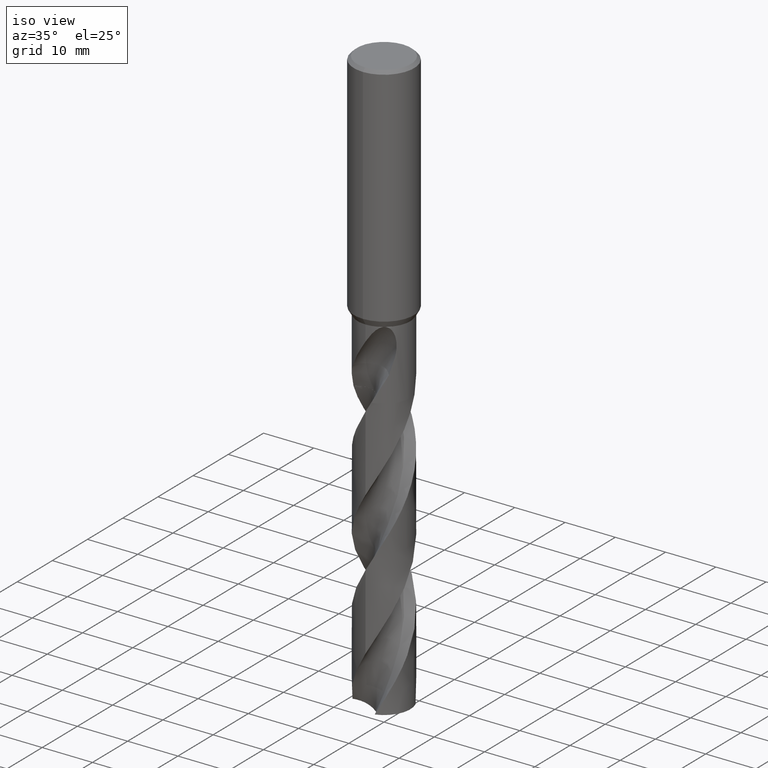
[diagram: clean part render]
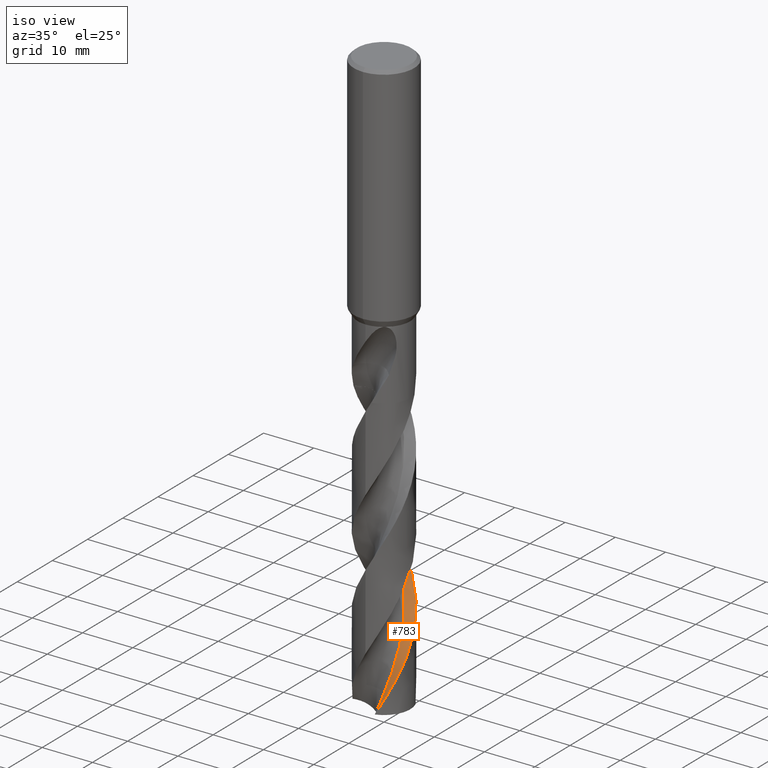
[diagram: same view with one face highlighted and labeled with its STEP entity id]
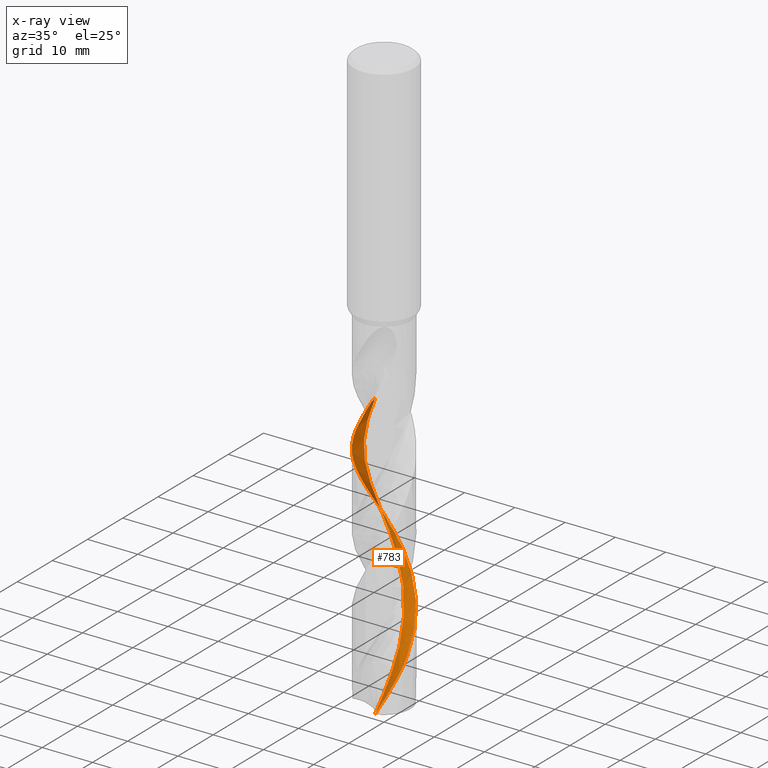
[diagram: x-ray of the same camera — body ghosted, the highlighted face saturated]
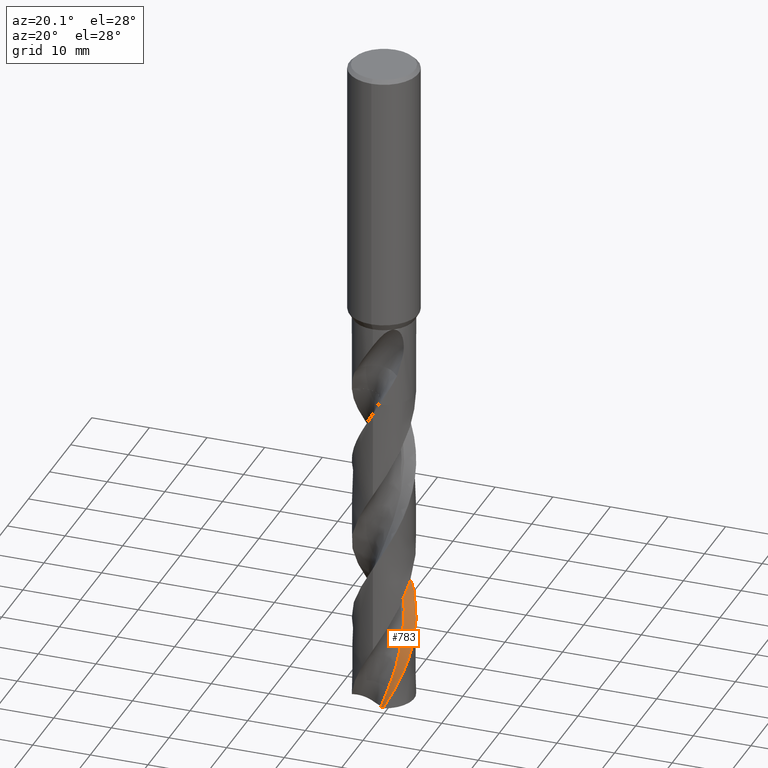
[diagram: same view with one face highlighted and labeled with its STEP entity id]
A machine part, iso view. The second image highlights one B-rep face of the part: STEP entity #783.
The next image is the same camera in x-ray: the body ghosted, the highlighted face saturated — about 0% of this face is hidden behind the body in this view.
A second angle (auxiliary view) of the same face is appended — the face is thin or edge-on in the first view.
In plain terms, the highlighted face is a freeform B-spline surface patch.
Its self-contained STEP definition (entity closure, byte-faithful):
#425=VERTEX_POINT('',#994);
#441=VERTEX_POINT('',#1011);
#463=EDGE_CURVE('',#701,#425,#1036,.T.);
#507=EDGE_CURVE('',#731,#527,#1081,.T.);
#527=VERTEX_POINT('',#1105);
#571=VERTEX_POINT('',#1153);
#581=EDGE_CURVE('',#527,#425,#1163,.T.);
#655=EDGE_CURVE('',#571,#441,#1243,.T.);
#701=VERTEX_POINT('',#1293);
#731=VERTEX_POINT('',#1326);
#739=EDGE_CURVE('',#701,#571,#1335,.T.);
#781=EDGE_CURVE('',#441,#731,#1380,.T.);
#783=ADVANCED_FACE('',(#1382),#1383,.F.);
#994=CARTESIAN_POINT('',(0.65949167651613,-3.24349319442052,-116.79530925201));
#1011=CARTESIAN_POINT('',(1.09795884444459E-014,-5.24990328403479,-61.9387033770496));
#1036=B_SPLINE_CURVE_WITH_KNOTS('',3,(#4142,#4143,#4144,#4145,#4146,#4147,#4148,#4149,#4150,#4151,#4152,#4153,#4154,#4155,#4156,#4157,#4158,#4159,#4160,#4161,#4162,#4163,#4164,#4165,#4166,#4167,#4168,#4169,#4170,#4171,#4172,#4173,#4174,#4175,#4176,#4177,#4178,#4179,#4180,#4181,#4182,#4183,#4184,#4185,#4186,#4187,#4188,#4189,#4190,#4191,#4192,#4193,#4194,#4195,#4196,#4197,#4198,#4199),.UNSPECIFIED.,.F.,.F.,(4,1,2,2,2,2,2,2,2,1,2,1,2,1,2,1,2,1,2,1,2,1,2,1,2,1,2,1,2,1,2,2,2,2,4),(0.0,1.26689958449814,2.53379916899629,3.80069875349443,5.06759833799258,7.60139750698886,10.1351966759852,12.6689958449814,15.2027950139777,17.736594182974,20.2703933519703,22.8041925209666,25.3379916899629,27.8717908589592,30.4055900279555,32.9393891969517,35.473188365948,38.0069875349443,40.5407867039406,43.0745858729369,45.6083850419332,48.1421842109295,50.6759833799258,53.2097825489221,55.7435817179183,58.2773808869146,60.8111800559109,63.3449792249072,65.8787783939035,68.4125775628998,70.9463767318961,73.4801759008924,76.0139750698886,78.5477742388849,81.0815734078812),.UNSPECIFIED.);
#1081=B_SPLINE_CURVE_WITH_KNOTS('',3,(#4464,#4465,#4466,#4467,#4468,#4469,#4470,#4471,#4472,#4473,#4474,#4475,#4476,#4477,#4478,#4479,#4480,#4481,#4482,#4483,#4484,#4485,#4486,#4487,#4488,#4489,#4490,#4491,#4492,#4493,#4494,#4495,#4496,#4497,#4498,#4499,#4500,#4501,#4502,#4503,#4504,#4505,#4506,#4507,#4508,#4509,#4510,#4511,#4512,#4513,#4514,#4515,#4516,#4517,#4518,#4519,#4520,#4521,#4522,#4523,#4524,#4525,#4526,#4527,#4528,#4529,#4530,#4531,#4532,#4533,#4534,#4535,#4536,#4537,#4538,#4539,#4540,#4541,#4542,#4543,#4544,#4545,#4546,#4547),.UNSPECIFIED.,.F.,.F.,(4,2,2,2,2,2,2,2,2,2,2,2,2,2,2,2,2,2,2,2,2,2,2,2,2,2,2,2,2,2,2,2,2,2,2,2,2,2,2,2,2,4),(0.0,2.5404713145012,3.55871574338767,4.5763901968632,5.40570294809297,5.45621928092477,7.21446169220443,8.21448072127659,10.8941822900106,12.8723965211782,14.9951312022285,16.014319590128,17.377558899427,19.4997161506208,20.5188162936082,21.8510305402058,24.2181561568956,25.2354057949074,26.5877605052576,29.2304982618999,32.1096378064326,34.8212527779403,35.3905132745208,37.6127941825613,38.6318067214652,40.7508494004822,42.8725406607112,44.8749150759133,47.6522717924791,50.4492264489168,52.9004535897138,53.485826585799,57.4876836077463,58.3738790975901,59.9428269195086,60.2373170569483,61.3421133710467,63.0011243286278,63.8301677032501,64.2445462835243,64.4516004469955,64.6585280843225),.UNSPECIFIED.);
#1105=CARTESIAN_POINT('',(1.65020867735761,-4.98390522794863,-116.089156270102));
#1153=CARTESIAN_POINT('',(1.05248799813792,-5.14331790943763,-60.1050000000001));
#1163=B_SPLINE_CURVE_WITH_KNOTS('',3,(#6216,#6217,#6218,#6219,#6220,#6221,#6222,#6223),.UNSPECIFIED.,.F.,.F.,(4,2,2,4),(0.0,1.14800098992405,2.84760359129401,4.5296465812908),.UNSPECIFIED.);
#1243=B_SPLINE_CURVE_WITH_KNOTS('',3,(#6492,#6493,#6494,#6495,#6496,#6497,#6498,#6499,#6500,#6501,#6502,#6503,#6504,#6505,#6506,#6507,#6508,#6509,#6510,#6511,#6512,#6513,#6514,#6515,#6516,#6517,#6518,#6519,#6520,#6521,#6522,#6523,#6524,#6525,#6526,#6527,#6528,#6529,#6530,#6531,#6532,#6533,#6534,#6535,#6536,#6537,#6538,#6539,#6540,#6541,#6542,#6543,#6544,#6545,#6546,#6547,#6548,#6549,#6550,#6551,#6552,#6553,#6554,#6555,#6556,#6557,#6558,#6559,#6560,#6561,#6562,#6563,#6564,#6565,#6566,#6567,#6568,#6569,#6570,#6571,#6572,#6573,#6574,#6575),.UNSPECIFIED.,.F.,.F.,(4,2,2,2,2,2,2,2,2,2,2,2,2,2,2,2,2,2,2,2,2,2,2,2,2,2,2,2,2,2,2,2,2,2,2,2,2,2,2,2,2,4),(0.0,2.5404713145012,3.55871574338767,4.5763901968632,5.40570294809297,5.45621928092477,7.21446169220443,8.21448072127659,10.8941822900106,12.8723965211782,14.9951312022285,16.014319590128,17.377558899427,19.4997161506208,20.5188162936082,21.8510305402058,24.2181561568956,25.2354057949074,26.5877605052576,29.2304982618999,32.1096378064326,34.8212527779403,35.3905132745208,37.6127941825613,38.6318067214652,40.7508494004822,42.8725406607112,44.8749150759133,47.6522717924791,50.4492264489168,52.9004535897138,53.485826585799,57.4876836077463,58.3738790975901,59.9428269195086,60.2373170569483,61.3421133710467,63.0011243286278,63.8301677032501,64.2445462835243,64.4516004469955,64.6585280843225),.UNSPECIFIED.);
#1293=CARTESIAN_POINT('',(0.521625326031044,-3.25719927706871,-60.1050000000003));
#1326=CARTESIAN_POINT('',(-5.4056256595375E-014,5.24995423434483,-90.4653520764811));
#1335=B_SPLINE_CURVE_WITH_KNOTS('',3,(#7698,#7699,#7700,#7701,#7702,#7703),.UNSPECIFIED.,.F.,.F.,(4,2,4),(-6.99972136357214,-3.49986107695856,-0.0),.UNSPECIFIED.);
#1380=B_SPLINE_CURVE_WITH_KNOTS('',3,(#8057,#8058,#8059,#8060,#8061,#8062,#8063,#8064,#8065,#8066,#8067,#8068,#8069,#8070,#8071,#8072,#8073,#8074,#8075,#8076,#8077,#8078,#8079,#8080,#8081,#8082,#8083,#8084,#8085,#8086,#8087,#8088,#8089,#8090,#8091,#8092,#8093,#8094,#8095,#8096,#8097,#8098,#8099,#8100,#8101,#8102,#8103,#8104,#8105,#8106,#8107,#8108,#8109,#8110,#8111,#8112,#8113,#8114,#8115,#8116,#8117,#8118,#8119,#8120,#8121,#8122,#8123,#8124,#8125,#8126,#8127,#8128,#8129,#8130,#8131,#8132,#8133,#8134,#8135,#8136,#8137,#8138,#8139,#8140),.UNSPECIFIED.,.F.,.F.,(4,2,2,2,2,2,2,2,2,2,2,2,2,2,2,2,2,2,2,2,2,2,2,2,2,2,2,2,2,2,2,2,2,2,2,2,2,2,2,2,2,4),(0.0,2.5404713145012,3.55871574338767,4.5763901968632,5.40570294809297,5.45621928092477,7.21446169220443,8.21448072127659,10.8941822900106,12.8723965211782,14.9951312022285,16.014319590128,17.377558899427,19.4997161506208,20.5188162936082,21.8510305402058,24.2181561568956,25.2354057949074,26.5877605052576,29.2304982618999,32.1096378064326,34.8212527779403,35.3905132745208,37.6127941825613,38.6318067214652,40.7508494004822,42.8725406607112,44.8749150759133,47.6522717924791,50.4492264489168,52.9004535897138,53.485826585799,57.4876836077463,58.3738790975901,59.9428269195086,60.2373170569483,61.3421133710467,63.0011243286278,63.8301677032501,64.2445462835243,64.4516004469955,64.6585280843225),.UNSPECIFIED.);
#1382=FACE_OUTER_BOUND('',#8142,.T.);
#1383=B_SPLINE_SURFACE_WITH_KNOTS('',3,3,((#8143,#8144,#8145,#8146,#8147,#8148,#8149,#8150,#8151,#8152,#8153,#8154,#8155,#8156,#8157,#8158,#8159,#8160,#8161,#8162,#8163,#8164,#8165,#8166,#8167,#8168,#8169,#8170,#8171,#8172,#8173,#8174,#8175,#8176,#8177,#8178,#8179,#8180,#8181,#8182,#8183,#8184,#8185,#8186,#8187,#8188,#8189,#8190,#8191,#8192,#8193,#8194,#8195,#8196,#8197,#8198,#8199,#8200,#8201),(#8202,#8203,#8204,#8205,#8206,#8207,#8208,#8209,#8210,#8211,#8212,#8213,#8214,#8215,#8216,#8217,#8218,#8219,#8220,#8221,#8222,#8223,#8224,#8225,#8226,#8227,#8228,#8229,#8230,#8231,#8232,#8233,#8234,#8235,#8236,#8237,#8238,#8239,#8240,#8241,#8242,#8243,#8244,#8245,#8246,#8247,#8248,#8249,#8250,#8251,#8252,#8253,#8254,#8255,#8256,#8257,#8258,#8259,#8260),(#8261,#8262,#8263,#8264,#8265,#8266,#8267,#8268,#8269,#8270,#8271,#8272,#8273,#8274,#8275,#8276,#8277,#8278,#8279,#8280,#8281,#8282,#8283,#8284,#8285,#8286,#8287,#8288,#8289,#8290,#8291,#8292,#8293,#8294,#8295,#8296,#8297,#8298,#8299,#8300,#8301,#8302,#8303,#8304,#8305,#8306,#8307,#8308,#8309,#8310,#8311,#8312,#8313,#8314,#8315,#8316,#8317,#8318,#8319),(#8320,#8321,#8322,#8323,#8324,#8325,#8326,#8327,#8328,#8329,#8330,#8331,#8332,#8333,#8334,#8335,#8336,#8337,#8338,#8339,#8340,#8341,#8342,#8343,#8344,#8345,#8346,#8347,#8348,#8349,#8350,#8351,#8352,#8353,#8354,#8355,#8356,#8357,#8358,#8359,#8360,#8361,#8362,#8363,#8364,#8365,#8366,#8367,#8368,#8369,#8370,#8371,#8372,#8373,#8374,#8375,#8376,#8377,#8378)),.UNSPECIFIED.,.F.,.F.,.F.,(4,4),(4,1,1,2,2,2,2,2,2,2,1,2,1,2,1,2,1,2,1,2,1,2,1,2,1,2,1,2,1,2,1,2,2,2,2,4),(-5.3145557616166E-016,7.0),(0.0,1.26689958449814,1.90034937674722,2.53379916899629,3.80069875349443,5.06759833799258,7.60139750698886,10.1351966759852,12.6689958449814,15.2027950139777,17.736594182974,20.2703933519703,22.8041925209666,25.3379916899629,27.8717908589592,30.4055900279555,32.9393891969517,35.473188365948,38.0069875349443,40.5407867039406,43.0745858729369,45.6083850419332,48.1421842109295,50.6759833799258,53.2097825489221,55.7435817179183,58.2773808869146,60.8111800559109,63.3449792249072,65.8787783939035,68.4125775628998,70.9463767318961,73.4801759008924,76.0139750698886,78.5477742388849,81.0815734078812),.UNSPECIFIED.);
#4142=CARTESIAN_POINT('',(2.47487373408221,-2.6001262659178,-54.943));
#4143=CARTESIAN_POINT('',(2.21609118137341,-2.5885373412518,-55.2711168185143));
#4144=CARTESIAN_POINT('',(1.8077265724247,-2.61894271474595,-55.9248935581223));
#4145=CARTESIAN_POINT('',(1.61667955760573,-2.74889054040622,-56.5785252572586));
#4146=CARTESIAN_POINT('',(1.51288071457274,-2.94292839866717,-57.2397841637271));
#4147=CARTESIAN_POINT('',(1.42637709217965,-3.01595717879246,-57.5705174015352));
#4148=CARTESIAN_POINT('',(1.20485610615679,-3.10819357880055,-58.2278052007368));
#4149=CARTESIAN_POINT('',(1.08767018768322,-3.14459263799841,-58.5561263466795));
#4150=CARTESIAN_POINT('',(0.726096613584896,-3.22757946382415,-59.5391552508789));
#4151=CARTESIAN_POINT('',(0.487676111350005,-3.26658651991545,-60.1949214350522));
#4152=CARTESIAN_POINT('',(0.0192736734021608,-3.31910220782575,-61.5106400442403));
#4153=CARTESIAN_POINT('',(-0.222689089582094,-3.30961265026839,-62.1680732112233));
#4154=CARTESIAN_POINT('',(-0.69681069398644,-3.24193671726234,-63.4809682137961));
#4155=CARTESIAN_POINT('',(-0.93045325286535,-3.17952164115793,-64.1377074135467));
#4156=CARTESIAN_POINT('',(-1.37856847946385,-3.01515676970789,-65.4519660197921));
#4157=CARTESIAN_POINT('',(-1.59341962327973,-2.90525145787917,-66.1088381727292));
#4158=CARTESIAN_POINT('',(-1.99649257382166,-2.65436628909348,-67.4225052597777));
#4159=CARTESIAN_POINT('',(-2.36821727862019,-2.34210866849688,-68.7367112640362));
#4160=CARTESIAN_POINT('',(-2.66437300964328,-1.96105025438604,-70.0498568032768));
#4161=CARTESIAN_POINT('',(-2.92711228920116,-1.5677671658453,-71.3637960560408));
#4162=CARTESIAN_POINT('',(-3.13484440359662,-1.1300036544184,-72.6783288730644));
#4163=CARTESIAN_POINT('',(-3.24301594284219,-0.659310784091004,-73.9915617283591));
#4164=CARTESIAN_POINT('',(-3.31515272133831,-0.191441344874111,-75.3053412129986));
#4165=CARTESIAN_POINT('',(-3.3191003764992,0.29324235264817,-76.6197385547745));
#4166=CARTESIAN_POINT('',(-3.21943830396484,0.76569565402472,-77.9329533058182));
#4167=CARTESIAN_POINT('',(-3.08825743462511,1.22048088202834,-79.2467893450219));
#4168=CARTESIAN_POINT('',(-2.88801807666798,1.66188379635314,-80.5612279809592));
#4169=CARTESIAN_POINT('',(-2.59884611344572,2.04861021097294,-81.8744454355509));
#4170=CARTESIAN_POINT('',(-2.28855645639341,2.40605657448809,-83.1882660226367));
#4171=CARTESIAN_POINT('',(-1.92126643696668,2.72232297378483,-84.5026944434799));
#4172=CARTESIAN_POINT('',(-1.49628602930746,2.95158565501003,-85.8159126229762));
#4173=CARTESIAN_POINT('',(-1.06444370034704,3.14539053970128,-87.1297382632877));
#4174=CARTESIAN_POINT('',(-0.598202864936493,3.27786171275759,-88.4441691399747));
#4175=CARTESIAN_POINT('',(-0.116219163739127,3.30714733029503,-89.7573861490789));
#4176=CARTESIAN_POINT('',(0.357074586707948,3.30138941642961,-91.0712101331077));
#4177=CARTESIAN_POINT('',(0.83578537725144,3.22551733806394,-92.385640942301));
#4178=CARTESIAN_POINT('',(1.28538924189434,3.04939555483003,-93.6988599785199));
#4179=CARTESIAN_POINT('',(1.71237172093181,2.84512597164282,-95.0126864105753));
#4180=CARTESIAN_POINT('',(2.11478053102904,2.5749443905048,-96.3271163876554));
#4181=CARTESIAN_POINT('',(2.44861110146712,2.22604903775447,-97.6403248172752));
#4182=CARTESIAN_POINT('',(2.75008494486346,1.86115149293628,-98.9541352700636));
#4183=CARTESIAN_POINT('',(3.00156384614802,1.44682623581843,-100.268568585669));
#4184=CARTESIAN_POINT('',(3.15767793150281,0.989844889309732,-101.581817737136));
#4185=CARTESIAN_POINT('',(3.27761180465734,0.531875094028778,-102.895681512399));
#4186=CARTESIAN_POINT('',(3.33142776473763,0.050125142603608,-104.210093389418));
#4187=CARTESIAN_POINT('',(3.281329100911,-0.429923948086889,-105.523220024734));
#4188=CARTESIAN_POINT('',(3.19845406075407,-0.895585288785068,-106.836951520262));
#4189=CARTESIAN_POINT('',(3.04485044253037,-1.35525746856426,-108.151460766177));
#4190=CARTESIAN_POINT('',(2.7949541062339,-1.76965179472583,-109.464856405099));
#4191=CARTESIAN_POINT('',(2.52003884142829,-2.15663536746975,-110.778760673143));
#4192=CARTESIAN_POINT('',(2.35507582398243,-2.33313999512921,-111.435759263981));
#4193=CARTESIAN_POINT('',(1.99649897929275,-2.64861064904945,-112.749458649624));
#4194=CARTESIAN_POINT('',(1.79610182668359,-2.78446182334504,-113.406438044121));
#4195=CARTESIAN_POINT('',(1.37762045253076,-3.01511434039018,-114.720455052577));
#4196=CARTESIAN_POINT('',(1.15405715005655,-3.10565760387043,-115.377149044304));
#4197=CARTESIAN_POINT('',(0.702155077882112,-3.24773595570479,-116.690102097491));
#4198=CARTESIAN_POINT('',(0.460035334720009,-3.28311573594366,-117.346947791735));
#4199=CARTESIAN_POINT('',(0.215142924511666,-3.28759947796476,-118.003274240349));
#4464=CARTESIAN_POINT('',(1.05350008433381,-5.14311069709876,-60.1032156011559));
#4465=CARTESIAN_POINT('',(0.637838844983037,-5.22825489256364,-60.8360775936607));
#4466=CARTESIAN_POINT('',(0.213648793816245,-5.26264511737393,-61.568791009174));
#4467=CARTESIAN_POINT('',(-0.379532454186468,-5.23892208596196,-62.5956565337003));
#4468=CARTESIAN_POINT('',(-0.548839385754581,-5.22390187443065,-62.8888951954744));
#4469=CARTESIAN_POINT('',(-0.885401495634429,-5.17749151191175,-63.4762344443459));
#4470=CARTESIAN_POINT('',(-1.0523786707832,-5.14614775987483,-63.7697269865514));
#4471=CARTESIAN_POINT('',(-1.35208004738542,-5.07469667030483,-64.3026340726727));
#4472=CARTESIAN_POINT('',(-1.4853160940267,-5.03731084717981,-64.5418165195485));
#4473=CARTESIAN_POINT('',(-1.62492392667458,-4.99211691443267,-64.7956864830385));
#4474=CARTESIAN_POINT('',(-1.63293336333063,-4.98950277658286,-64.8102627723651));
#4475=CARTESIAN_POINT('',(-1.91948626315465,-4.8952131211191,-65.3321719581629));
#4476=CARTESIAN_POINT('',(-2.18994221275291,-4.78035481800265,-65.8386543890977));
#4477=CARTESIAN_POINT('',(-2.59704350509078,-4.56560882639909,-66.6344036715076));
#4478=CARTESIAN_POINT('',(-2.7407668727414,-4.48080082331919,-66.9225534163568));
#4479=CARTESIAN_POINT('',(-3.25372798536193,-4.14421026522872,-67.9845964534962));
#4480=CARTESIAN_POINT('',(-3.5947587996049,-3.85220789207367,-68.7559788984247));
#4481=CARTESIAN_POINT('',(-4.11624922497069,-3.27524419007976,-70.0999219477025));
#4482=CARTESIAN_POINT('',(-4.31394514757095,-3.0100425256881,-70.6683291762208));
#4483=CARTESIAN_POINT('',(-4.66933960896619,-2.42574748510911,-71.8522685967017));
#4484=CARTESIAN_POINT('',(-4.82233088726984,-2.10531412508917,-72.464450298661));
#4485=CARTESIAN_POINT('',(-4.99932310630663,-1.61164749374562,-73.3713701857561));
#4486=CARTESIAN_POINT('',(-5.04893946309441,-1.44875712620105,-73.6652743763804));
#4487=CARTESIAN_POINT('',(-5.14624623400889,-1.06288272203063,-74.3527894390404));
#4488=CARTESIAN_POINT('',(-5.18746171751221,-0.838864068093297,-74.7453397213373));
#4489=CARTESIAN_POINT('',(-5.25535815636787,-0.261354386316135,-75.7517680735839));
#4490=CARTESIAN_POINT('',(-5.26103681582355,0.0937088591727825,-76.3639570045013));
#4491=CARTESIAN_POINT('',(-5.21641098081151,0.616261383400172,-77.2709235701285));
#4492=CARTESIAN_POINT('',(-5.19369554921004,0.785044109310224,-77.5648857404289));
#4493=CARTESIAN_POINT('',(-5.12242405901261,1.17136803862434,-78.2436079248183));
#4494=CARTESIAN_POINT('',(-5.0681959184398,1.38730565660448,-78.6273270256783));
#4495=CARTESIAN_POINT('',(-4.88015516619901,1.9753376391947,-79.6957862516771));
#4496=CARTESIAN_POINT('',(-4.71767689100961,2.33702428446838,-80.3785964033754));
#4497=CARTESIAN_POINT('',(-4.42941372526304,2.82329820318163,-81.3559886282437));
#4498=CARTESIAN_POINT('',(-4.33570008600244,2.96520884076102,-81.6494765066867));
#4499=CARTESIAN_POINT('',(-4.10167198128225,3.28469767837395,-82.3336627090753));
#4500=CARTESIAN_POINT('',(-3.95658828051857,3.45806677332376,-82.7234332636038));
#4501=CARTESIAN_POINT('',(-3.49664391496947,3.94080143047772,-83.8777097853037));
#4502=CARTESIAN_POINT('',(-3.1531157033277,4.22076554676103,-84.6392589291258));
#4503=CARTESIAN_POINT('',(-2.37005518323844,4.70917538715809,-86.2341277305134));
#4504=CARTESIAN_POINT('',(-1.92894888127342,4.90632392777605,-87.0617458850208));
#4505=CARTESIAN_POINT('',(-1.03306167218424,5.16716396603316,-88.6773259574342));
#4506=CARTESIAN_POINT('',(-0.583699049658077,5.23705148288013,-89.4565195467355));
#4507=CARTESIAN_POINT('',(-0.0354972826789899,5.2506962636897,-90.4040143744391));
#4508=CARTESIAN_POINT('',(0.0596102427212092,5.25047669069989,-90.5683396044274));
#4509=CARTESIAN_POINT('',(0.525590960277138,5.23674696260656,-91.3749118913568));
#4510=CARTESIAN_POINT('',(0.894461003066396,5.18650464645526,-92.0165987929152));
#4511=CARTESIAN_POINT('',(1.42027759601744,5.05706048081607,-92.9531872301515));
#4512=CARTESIAN_POINT('',(1.58357176982593,5.00833307745754,-93.2473606808778));
#4513=CARTESIAN_POINT('',(2.078442505738,4.83401417452888,-94.153872955285));
#4514=CARTESIAN_POINT('',(2.39955586631942,4.68287742159985,-94.7642049578072));
#4515=CARTESIAN_POINT('',(3.00640194159091,4.31845951674276,-95.9900327348953));
#4516=CARTESIAN_POINT('',(3.29102911114594,4.10573754578508,-96.601900486489));
#4517=CARTESIAN_POINT('',(3.79871274363673,3.63923122164809,-97.7933990946564));
#4518=CARTESIAN_POINT('',(4.02279767735523,3.38984510438609,-98.3695828596949));
#4519=CARTESIAN_POINT('',(4.49724208910447,2.74810157127177,-99.7513349392648));
#4520=CARTESIAN_POINT('',(4.7225412833872,2.33998884686799,-100.551548419774));
#4521=CARTESIAN_POINT('',(5.0612093451837,1.47145828671753,-102.162325737716));
#4522=CARTESIAN_POINT('',(5.17202792923392,1.01517630697137,-102.967542539794));
#4523=CARTESIAN_POINT('',(5.26396049254762,0.143509233736396,-104.48480175125));
#4524=CARTESIAN_POINT('',(5.25916261673568,-0.267508493681914,-105.190099636392));
#4525=CARTESIAN_POINT('',(5.1939601476383,-0.771151216291982,-106.067481456771));
#4526=CARTESIAN_POINT('',(5.1786856454638,-0.867813527877349,-106.236494603238));
#4527=CARTESIAN_POINT('',(5.0379260656487,-1.62139322110274,-107.562630867407));
#4528=CARTESIAN_POINT('',(4.79043004771617,-2.25003409130707,-108.712630865274));
#4529=CARTESIAN_POINT('',(4.35177113645118,-2.94048812657691,-110.125723306379));
#4530=CARTESIAN_POINT('',(4.26701017590445,-3.06218494928113,-110.381773078755));
#4531=CARTESIAN_POINT('',(4.01833151610695,-3.38884178486377,-111.091761594208));
#4532=CARTESIAN_POINT('',(3.8439844172652,-3.58539169349894,-111.5450721461));
#4533=CARTESIAN_POINT('',(3.62033309193619,-3.80237272177743,-112.083960604069));
#4534=CARTESIAN_POINT('',(3.58451081658199,-3.83616126855261,-112.169108318497));
#4535=CARTESIAN_POINT('',(3.41206883218132,-3.99428897647662,-112.573805409514));
#4536=CARTESIAN_POINT('',(3.2694340203783,-4.11185551502311,-112.893239334405));
#4537=CARTESIAN_POINT('',(2.89788347001082,-4.38653080414362,-113.692630660599));
#4538=CARTESIAN_POINT('',(2.66209876136491,-4.53350608570124,-114.171662953237));
#4539=CARTESIAN_POINT('',(2.29265826979223,-4.72497830215986,-114.8911976754));
#4540=CARTESIAN_POINT('',(2.16706112118918,-4.78388579053007,-115.13083602978));
#4541=CARTESIAN_POINT('',(1.97538269545396,-4.86468472161772,-115.49039387135));
#4542=CARTESIAN_POINT('',(1.91097715877092,-4.89034384282733,-115.610201010441));
#4543=CARTESIAN_POINT('',(1.81365561501518,-4.92690039756584,-115.789898587971));
#4544=CARTESIAN_POINT('',(1.78111036512149,-4.9387590620122,-115.849769863253));
#4545=CARTESIAN_POINT('',(1.71581175479202,-4.96182285120467,-115.969481802338));
#4546=CARTESIAN_POINT('',(1.683061728154,-4.97302722200656,-116.029308405117));
#4547=CARTESIAN_POINT('',(1.6502086773576,-4.98390522794862,-116.089156270102));
#6216=CARTESIAN_POINT('',(3.08036925370863,-6.75546632445213,-115.297658881603));
#6217=CARTESIAN_POINT('',(2.83028306640437,-6.49389677463359,-115.42204658134));
#6218=CARTESIAN_POINT('',(2.59064742465572,-6.22273911924449,-115.546988230508));
#6219=CARTESIAN_POINT('',(2.02428946492913,-5.52754490716827,-115.858270038279));
#6220=CARTESIAN_POINT('',(1.71122913697663,-5.09287577414886,-116.045170289722));
#6221=CARTESIAN_POINT('',(1.14188279807887,-4.18943294287694,-116.420352625505));
#6222=CARTESIAN_POINT('',(0.886310633122464,-3.72340161060049,-116.607690102233));
#6223=CARTESIAN_POINT('',(0.659491676609012,-3.24349319438984,-116.795309252015));
#6492=CARTESIAN_POINT('',(1.05350008433381,-5.14311069709876,-60.1032156011559));
#6493=CARTESIAN_POINT('',(0.637838844983037,-5.22825489256364,-60.8360775936607));
#6494=CARTESIAN_POINT('',(0.213648793816245,-5.26264511737393,-61.568791009174));
#6495=CARTESIAN_POINT('',(-0.379532454186468,-5.23892208596196,-62.5956565337003));
#6496=CARTESIAN_POINT('',(-0.548839385754581,-5.22390187443065,-62.8888951954744));
#6497=CARTESIAN_POINT('',(-0.885401495634429,-5.17749151191175,-63.4762344443459));
#6498=CARTESIAN_POINT('',(-1.0523786707832,-5.14614775987483,-63.7697269865514));
#6499=CARTESIAN_POINT('',(-1.35208004738542,-5.07469667030483,-64.3026340726727));
#6500=CARTESIAN_POINT('',(-1.4853160940267,-5.03731084717981,-64.5418165195485));
#6501=CARTESIAN_POINT('',(-1.62492392667458,-4.99211691443267,-64.7956864830385));
#6502=CARTESIAN_POINT('',(-1.63293336333063,-4.98950277658286,-64.8102627723651));
#6503=CARTESIAN_POINT('',(-1.91948626315465,-4.8952131211191,-65.3321719581629));
#6504=CARTESIAN_POINT('',(-2.18994221275291,-4.78035481800265,-65.8386543890977));
#6505=CARTESIAN_POINT('',(-2.59704350509078,-4.56560882639909,-66.6344036715076));
#6506=CARTESIAN_POINT('',(-2.7407668727414,-4.48080082331919,-66.9225534163568));
#6507=CARTESIAN_POINT('',(-3.25372798536193,-4.14421026522872,-67.9845964534962));
#6508=CARTESIAN_POINT('',(-3.5947587996049,-3.85220789207367,-68.7559788984247));
#6509=CARTESIAN_POINT('',(-4.11624922497069,-3.27524419007976,-70.0999219477025));
#6510=CARTESIAN_POINT('',(-4.31394514757095,-3.0100425256881,-70.6683291762208));
#6511=CARTESIAN_POINT('',(-4.66933960896619,-2.42574748510911,-71.8522685967017));
#6512=CARTESIAN_POINT('',(-4.82233088726984,-2.10531412508917,-72.464450298661));
#6513=CARTESIAN_POINT('',(-4.99932310630663,-1.61164749374562,-73.3713701857561));
#6514=CARTESIAN_POINT('',(-5.04893946309441,-1.44875712620105,-73.6652743763804));
#6515=CARTESIAN_POINT('',(-5.14624623400889,-1.06288272203063,-74.3527894390404));
#6516=CARTESIAN_POINT('',(-5.18746171751221,-0.838864068093297,-74.7453397213373));
#6517=CARTESIAN_POINT('',(-5.25535815636787,-0.261354386316135,-75.7517680735839));
#6518=CARTESIAN_POINT('',(-5.26103681582355,0.0937088591727825,-76.3639570045013));
#6519=CARTESIAN_POINT('',(-5.21641098081151,0.616261383400172,-77.2709235701285));
#6520=CARTESIAN_POINT('',(-5.19369554921004,0.785044109310224,-77.5648857404289));
#6521=CARTESIAN_POINT('',(-5.12242405901261,1.17136803862434,-78.2436079248183));
#6522=CARTESIAN_POINT('',(-5.0681959184398,1.38730565660448,-78.6273270256783));
#6523=CARTESIAN_POINT('',(-4.88015516619901,1.9753376391947,-79.6957862516771));
#6524=CARTESIAN_POINT('',(-4.71767689100961,2.33702428446838,-80.3785964033754));
#6525=CARTESIAN_POINT('',(-4.42941372526304,2.82329820318163,-81.3559886282437));
#6526=CARTESIAN_POINT('',(-4.33570008600244,2.96520884076102,-81.6494765066867));
#6527=CARTESIAN_POINT('',(-4.10167198128225,3.28469767837395,-82.3336627090753));
#6528=CARTESIAN_POINT('',(-3.95658828051857,3.45806677332376,-82.7234332636038));
#6529=CARTESIAN_POINT('',(-3.49664391496947,3.94080143047772,-83.8777097853037));
#6530=CARTESIAN_POINT('',(-3.1531157033277,4.22076554676103,-84.6392589291258));
#6531=CARTESIAN_POINT('',(-2.37005518323844,4.70917538715809,-86.2341277305134));
#6532=CARTESIAN_POINT('',(-1.92894888127342,4.90632392777605,-87.0617458850208));
#6533=CARTESIAN_POINT('',(-1.03306167218424,5.16716396603316,-88.6773259574342));
#6534=CARTESIAN_POINT('',(-0.583699049658077,5.23705148288013,-89.4565195467355));
#6535=CARTESIAN_POINT('',(-0.0354972826789899,5.2506962636897,-90.4040143744391));
#6536=CARTESIAN_POINT('',(0.0596102427212092,5.25047669069989,-90.5683396044274));
#6537=CARTESIAN_POINT('',(0.525590960277138,5.23674696260656,-91.3749118913568));
#6538=CARTESIAN_POINT('',(0.894461003066396,5.18650464645526,-92.0165987929152));
#6539=CARTESIAN_POINT('',(1.42027759601744,5.05706048081607,-92.9531872301515));
#6540=CARTESIAN_POINT('',(1.58357176982593,5.00833307745754,-93.2473606808778));
#6541=CARTESIAN_POINT('',(2.078442505738,4.83401417452888,-94.153872955285));
#6542=CARTESIAN_POINT('',(2.39955586631942,4.68287742159985,-94.7642049578072));
#6543=CARTESIAN_POINT('',(3.00640194159091,4.31845951674276,-95.9900327348953));
#6544=CARTESIAN_POINT('',(3.29102911114594,4.10573754578508,-96.601900486489));
#6545=CARTESIAN_POINT('',(3.79871274363673,3.63923122164809,-97.7933990946564));
#6546=CARTESIAN_POINT('',(4.02279767735523,3.38984510438609,-98.3695828596949));
#6547=CARTESIAN_POINT('',(4.49724208910447,2.74810157127177,-99.7513349392648));
#6548=CARTESIAN_POINT('',(4.7225412833872,2.33998884686799,-100.551548419774));
#6549=CARTESIAN_POINT('',(5.0612093451837,1.47145828671753,-102.162325737716));
#6550=CARTESIAN_POINT('',(5.17202792923392,1.01517630697137,-102.967542539794));
#6551=CARTESIAN_POINT('',(5.26396049254762,0.143509233736396,-104.48480175125));
#6552=CARTESIAN_POINT('',(5.25916261673568,-0.267508493681914,-105.190099636392));
#6553=CARTESIAN_POINT('',(5.1939601476383,-0.771151216291982,-106.067481456771));
#6554=CARTESIAN_POINT('',(5.1786856454638,-0.867813527877349,-106.236494603238));
#6555=CARTESIAN_POINT('',(5.0379260656487,-1.62139322110274,-107.562630867407));
#6556=CARTESIAN_POINT('',(4.79043004771617,-2.25003409130707,-108.712630865274));
#6557=CARTESIAN_POINT('',(4.35177113645118,-2.94048812657691,-110.125723306379));
#6558=CARTESIAN_POINT('',(4.26701017590445,-3.06218494928113,-110.381773078755));
#6559=CARTESIAN_POINT('',(4.01833151610695,-3.38884178486377,-111.091761594208));
#6560=CARTESIAN_POINT('',(3.8439844172652,-3.58539169349894,-111.5450721461));
#6561=CARTESIAN_POINT('',(3.62033309193619,-3.80237272177743,-112.083960604069));
#6562=CARTESIAN_POINT('',(3.58451081658199,-3.83616126855261,-112.169108318497));
#6563=CARTESIAN_POINT('',(3.41206883218132,-3.99428897647662,-112.573805409514));
#6564=CARTESIAN_POINT('',(3.2694340203783,-4.11185551502311,-112.893239334405));
#6565=CARTESIAN_POINT('',(2.89788347001082,-4.38653080414362,-113.692630660599));
#6566=CARTESIAN_POINT('',(2.66209876136491,-4.53350608570124,-114.171662953237));
#6567=CARTESIAN_POINT('',(2.29265826979223,-4.72497830215986,-114.8911976754));
#6568=CARTESIAN_POINT('',(2.16706112118918,-4.78388579053007,-115.13083602978));
#6569=CARTESIAN_POINT('',(1.97538269545396,-4.86468472161772,-115.49039387135));
#6570=CARTESIAN_POINT('',(1.91097715877092,-4.89034384282733,-115.610201010441));
#6571=CARTESIAN_POINT('',(1.81365561501518,-4.92690039756584,-115.789898587971));
#6572=CARTESIAN_POINT('',(1.78111036512149,-4.9387590620122,-115.849769863253));
#6573=CARTESIAN_POINT('',(1.71581175479202,-4.96182285120467,-115.969481802338));
#6574=CARTESIAN_POINT('',(1.683061728154,-4.97302722200656,-116.029308405117));
#6575=CARTESIAN_POINT('',(1.6502086773576,-4.98390522794862,-116.089156270102));
#7698=CARTESIAN_POINT('',(0.521625326127491,-3.25719927704152,-60.105));
#7699=CARTESIAN_POINT('',(0.83791830948033,-4.38012454842014,-60.105));
#7700=CARTESIAN_POINT('',(1.15381839076591,-5.50315716026855,-60.105));
#7701=CARTESIAN_POINT('',(1.78483432544814,-7.74944962679581,-60.105));
#7702=CARTESIAN_POINT('',(2.09994843235528,-8.87270326498655,-60.1049999999999));
#7703=CARTESIAN_POINT('',(2.4146694322229,-9.99607041522879,-60.1049999999999));
#8057=CARTESIAN_POINT('',(1.05350008433381,-5.14311069709876,-60.1032156011559));
#8058=CARTESIAN_POINT('',(0.637838844983037,-5.22825489256364,-60.8360775936607));
#8059=CARTESIAN_POINT('',(0.213648793816245,-5.26264511737393,-61.568791009174));
#8060=CARTESIAN_POINT('',(-0.379532454186468,-5.23892208596196,-62.5956565337003));
#8061=CARTESIAN_POINT('',(-0.548839385754581,-5.22390187443065,-62.8888951954744));
#8062=CARTESIAN_POINT('',(-0.885401495634429,-5.17749151191175,-63.4762344443459));
#8063=CARTESIAN_POINT('',(-1.0523786707832,-5.14614775987483,-63.7697269865514));
#8064=CARTESIAN_POINT('',(-1.35208004738542,-5.07469667030483,-64.3026340726727));
#8065=CARTESIAN_POINT('',(-1.4853160940267,-5.03731084717981,-64.5418165195485));
#8066=CARTESIAN_POINT('',(-1.62492392667458,-4.99211691443267,-64.7956864830385));
#8067=CARTESIAN_POINT('',(-1.63293336333063,-4.98950277658286,-64.8102627723651));
#8068=CARTESIAN_POINT('',(-1.91948626315465,-4.8952131211191,-65.3321719581629));
#8069=CARTESIAN_POINT('',(-2.18994221275291,-4.78035481800265,-65.8386543890977));
#8070=CARTESIAN_POINT('',(-2.59704350509078,-4.56560882639909,-66.6344036715076));
#8071=CARTESIAN_POINT('',(-2.7407668727414,-4.48080082331919,-66.9225534163568));
#8072=CARTESIAN_POINT('',(-3.25372798536193,-4.14421026522872,-67.9845964534962));
#8073=CARTESIAN_POINT('',(-3.5947587996049,-3.85220789207367,-68.7559788984247));
#8074=CARTESIAN_POINT('',(-4.11624922497069,-3.27524419007976,-70.0999219477025));
#8075=CARTESIAN_POINT('',(-4.31394514757095,-3.0100425256881,-70.6683291762208));
#8076=CARTESIAN_POINT('',(-4.66933960896619,-2.42574748510911,-71.8522685967017));
#8077=CARTESIAN_POINT('',(-4.82233088726984,-2.10531412508917,-72.464450298661));
#8078=CARTESIAN_POINT('',(-4.99932310630663,-1.61164749374562,-73.3713701857561));
#8079=CARTESIAN_POINT('',(-5.04893946309441,-1.44875712620105,-73.6652743763804));
#8080=CARTESIAN_POINT('',(-5.14624623400889,-1.06288272203063,-74.3527894390404));
#8081=CARTESIAN_POINT('',(-5.18746171751221,-0.838864068093297,-74.7453397213373));
#8082=CARTESIAN_POINT('',(-5.25535815636787,-0.261354386316135,-75.7517680735839));
#8083=CARTESIAN_POINT('',(-5.26103681582355,0.0937088591727825,-76.3639570045013));
#8084=CARTESIAN_POINT('',(-5.21641098081151,0.616261383400172,-77.2709235701285));
#8085=CARTESIAN_POINT('',(-5.19369554921004,0.785044109310224,-77.5648857404289));
#8086=CARTESIAN_POINT('',(-5.12242405901261,1.17136803862434,-78.2436079248183));
#8087=CARTESIAN_POINT('',(-5.0681959184398,1.38730565660448,-78.6273270256783));
#8088=CARTESIAN_POINT('',(-4.88015516619901,1.9753376391947,-79.6957862516771));
#8089=CARTESIAN_POINT('',(-4.71767689100961,2.33702428446838,-80.3785964033754));
#8090=CARTESIAN_POINT('',(-4.42941372526304,2.82329820318163,-81.3559886282437));
#8091=CARTESIAN_POINT('',(-4.33570008600244,2.96520884076102,-81.6494765066867));
#8092=CARTESIAN_POINT('',(-4.10167198128225,3.28469767837395,-82.3336627090753));
#8093=CARTESIAN_POINT('',(-3.95658828051857,3.45806677332376,-82.7234332636038));
#8094=CARTESIAN_POINT('',(-3.49664391496947,3.94080143047772,-83.8777097853037));
#8095=CARTESIAN_POINT('',(-3.1531157033277,4.22076554676103,-84.6392589291258));
#8096=CARTESIAN_POINT('',(-2.37005518323844,4.70917538715809,-86.2341277305134));
#8097=CARTESIAN_POINT('',(-1.92894888127342,4.90632392777605,-87.0617458850208));
#8098=CARTESIAN_POINT('',(-1.03306167218424,5.16716396603316,-88.6773259574342));
#8099=CARTESIAN_POINT('',(-0.583699049658077,5.23705148288013,-89.4565195467355));
#8100=CARTESIAN_POINT('',(-0.0354972826789899,5.2506962636897,-90.4040143744391));
#8101=CARTESIAN_POINT('',(0.0596102427212092,5.25047669069989,-90.5683396044274));
#8102=CARTESIAN_POINT('',(0.525590960277138,5.23674696260656,-91.3749118913568));
#8103=CARTESIAN_POINT('',(0.894461003066396,5.18650464645526,-92.0165987929152));
#8104=CARTESIAN_POINT('',(1.42027759601744,5.05706048081607,-92.9531872301515));
#8105=CARTESIAN_POINT('',(1.58357176982593,5.00833307745754,-93.2473606808778));
#8106=CARTESIAN_POINT('',(2.078442505738,4.83401417452888,-94.153872955285));
#8107=CARTESIAN_POINT('',(2.39955586631942,4.68287742159985,-94.7642049578072));
#8108=CARTESIAN_POINT('',(3.00640194159091,4.31845951674276,-95.9900327348953));
#8109=CARTESIAN_POINT('',(3.29102911114594,4.10573754578508,-96.601900486489));
#8110=CARTESIAN_POINT('',(3.79871274363673,3.63923122164809,-97.7933990946564));
#8111=CARTESIAN_POINT('',(4.02279767735523,3.38984510438609,-98.3695828596949));
#8112=CARTESIAN_POINT('',(4.49724208910447,2.74810157127177,-99.7513349392648));
#8113=CARTESIAN_POINT('',(4.7225412833872,2.33998884686799,-100.551548419774));
#8114=CARTESIAN_POINT('',(5.0612093451837,1.47145828671753,-102.162325737716));
#8115=CARTESIAN_POINT('',(5.17202792923392,1.01517630697137,-102.967542539794));
#8116=CARTESIAN_POINT('',(5.26396049254762,0.143509233736396,-104.48480175125));
#8117=CARTESIAN_POINT('',(5.25916261673568,-0.267508493681914,-105.190099636392));
#8118=CARTESIAN_POINT('',(5.1939601476383,-0.771151216291982,-106.067481456771));
#8119=CARTESIAN_POINT('',(5.1786856454638,-0.867813527877349,-106.236494603238));
#8120=CARTESIAN_POINT('',(5.0379260656487,-1.62139322110274,-107.562630867407));
#8121=CARTESIAN_POINT('',(4.79043004771617,-2.25003409130707,-108.712630865274));
#8122=CARTESIAN_POINT('',(4.35177113645118,-2.94048812657691,-110.125723306379));
#8123=CARTESIAN_POINT('',(4.26701017590445,-3.06218494928113,-110.381773078755));
#8124=CARTESIAN_POINT('',(4.01833151610695,-3.38884178486377,-111.091761594208));
#8125=CARTESIAN_POINT('',(3.8439844172652,-3.58539169349894,-111.5450721461));
#8126=CARTESIAN_POINT('',(3.62033309193619,-3.80237272177743,-112.083960604069));
#8127=CARTESIAN_POINT('',(3.58451081658199,-3.83616126855261,-112.169108318497));
#8128=CARTESIAN_POINT('',(3.41206883218132,-3.99428897647662,-112.573805409514));
#8129=CARTESIAN_POINT('',(3.2694340203783,-4.11185551502311,-112.893239334405));
#8130=CARTESIAN_POINT('',(2.89788347001082,-4.38653080414362,-113.692630660599));
#8131=CARTESIAN_POINT('',(2.66209876136491,-4.53350608570124,-114.171662953237));
#8132=CARTESIAN_POINT('',(2.29265826979223,-4.72497830215986,-114.8911976754));
#8133=CARTESIAN_POINT('',(2.16706112118918,-4.78388579053007,-115.13083602978));
#8134=CARTESIAN_POINT('',(1.97538269545396,-4.86468472161772,-115.49039387135));
#8135=CARTESIAN_POINT('',(1.91097715877092,-4.89034384282733,-115.610201010441));
#8136=CARTESIAN_POINT('',(1.81365561501518,-4.92690039756584,-115.789898587971));
#8137=CARTESIAN_POINT('',(1.78111036512149,-4.9387590620122,-115.849769863253));
#8138=CARTESIAN_POINT('',(1.71581175479202,-4.96182285120467,-115.969481802338));
#8139=CARTESIAN_POINT('',(1.683061728154,-4.97302722200656,-116.029308405117));
#8140=CARTESIAN_POINT('',(1.6502086773576,-4.98390522794862,-116.089156270102));
#8142=EDGE_LOOP('',(#9760,#9761,#9762,#9763,#9764,#9765));
#8143=CARTESIAN_POINT('',(2.47487373415292,-2.60012626584709,-54.943));
#8144=CARTESIAN_POINT('',(2.21609118144413,-2.58853734118109,-55.2711168185143));
#8145=CARTESIAN_POINT('',(1.91018037339381,-2.61133926160502,-55.7614081139335));
#8146=CARTESIAN_POINT('',(1.66380379613936,-2.71645859645513,-56.4151990621245));
#8147=CARTESIAN_POINT('',(1.5907298469269,-2.79740000490818,-56.7438399838751));
#8148=CARTESIAN_POINT('',(1.51288071465497,-2.94292839861514,-57.2397841637279));
#8149=CARTESIAN_POINT('',(1.42637709226122,-3.01595717873785,-57.5705174015352));
#8150=CARTESIAN_POINT('',(1.20485610624961,-3.1081935787572,-58.2278052007368));
#8151=CARTESIAN_POINT('',(1.08767018777509,-3.14459263794954,-58.5561263466813));
#8152=CARTESIAN_POINT('',(0.72609661367677,-3.22757946380341,-59.5391552508751));
#8153=CARTESIAN_POINT('',(0.487676111440668,-3.26658651989638,-60.1949214350521));
#8154=CARTESIAN_POINT('',(0.0192736735078265,-3.31910220780667,-61.5106400442402));
#8155=CARTESIAN_POINT('',(-0.222689089482127,-3.309612650256,-62.1680732112232));
#8156=CARTESIAN_POINT('',(-0.696810693886473,-3.24193671727997,-63.4809682137961));
#8157=CARTESIAN_POINT('',(-0.930453252760778,-3.17952164117071,-64.1377074135617));
#8158=CARTESIAN_POINT('',(-1.37856847937428,-3.01515676974318,-65.4519660197771));
#8159=CARTESIAN_POINT('',(-1.59341962317515,-2.90525145791986,-66.1088381727442));
#8160=CARTESIAN_POINT('',(-1.99649257374708,-2.65436628914167,-67.4225052597626));
#8161=CARTESIAN_POINT('',(-2.3682172785404,-2.34210866855909,-68.7367112640437));
#8162=CARTESIAN_POINT('',(-2.66437300956564,-1.961050254464,-70.0498568032767));
#8163=CARTESIAN_POINT('',(-2.92711228915352,-1.56776716592326,-71.3637960560408));
#8164=CARTESIAN_POINT('',(-3.13484440354559,-1.13000365451013,-72.6783288730643));
#8165=CARTESIAN_POINT('',(-3.24301594281441,-0.659310784188074,-73.991561728359));
#8166=CARTESIAN_POINT('',(-3.31515272131803,-0.191441344971181,-75.3053412129985));
#8167=CARTESIAN_POINT('',(-3.31910037649657,0.293242352545854,-76.6197385547745));
#8168=CARTESIAN_POINT('',(-3.21943830398011,0.765695653926543,-77.9329533058182));
#8169=CARTESIAN_POINT('',(-3.08825743464788,1.22048088193016,-79.2467893450218));
#8170=CARTESIAN_POINT('',(-2.88801807671049,1.66188379625921,-80.5612279809442));
#8171=CARTESIAN_POINT('',(-2.59884611349676,2.04861021089186,-81.8744454355809));
#8172=CARTESIAN_POINT('',(-2.28855645645945,2.40605657440702,-83.1882660226067));
#8173=CARTESIAN_POINT('',(-1.92126643704305,2.72232297371483,-84.5026944434798));
#8174=CARTESIAN_POINT('',(-1.49628602938716,2.95158565496484,-85.8159126230061));
#8175=CARTESIAN_POINT('',(-1.06444370044175,3.14539053964859,-87.1297382632577));
#8176=CARTESIAN_POINT('',(-0.598202865030689,3.27786171273353,-88.4441691400197));
#8177=CARTESIAN_POINT('',(-0.116219163838829,3.3071473302798,-89.7573861490189));
#8178=CARTESIAN_POINT('',(0.357074586608245,3.30138941642939,-91.0712101331677));
#8179=CARTESIAN_POINT('',(0.835785377146337,3.22551733807819,-92.385640942241));
#8180=CARTESIAN_POINT('',(1.28538924180813,3.04939555485745,-93.6988599785798));
#8181=CARTESIAN_POINT('',(1.7123717208306,2.84512597168525,-95.0126864105152));
#8182=CARTESIAN_POINT('',(2.11478053094684,2.57494439056036,-96.3271163877154));
#8183=CARTESIAN_POINT('',(2.44861110139679,2.22604903781806,-97.6403248172151));
#8184=CARTESIAN_POINT('',(2.75008494479313,1.86115149301487,-98.9541352701236));
#8185=CARTESIAN_POINT('',(3.00156384609902,1.44682623590123,-100.268568585639));
#8186=CARTESIAN_POINT('',(3.15767793145765,0.989844889403809,-101.581817737136));
#8187=CARTESIAN_POINT('',(3.27761180463469,0.531875094122855,-102.895681512399));
#8188=CARTESIAN_POINT('',(3.33142776472072,0.0501251427051064,-104.210093389388));
#8189=CARTESIAN_POINT('',(3.28132910091606,-0.429923947987277,-105.523220024794));
#8190=CARTESIAN_POINT('',(3.19845406076663,-0.895585288685457,-106.836951520202));
#8191=CARTESIAN_POINT('',(3.04485044256302,-1.35525746846665,-108.151460766237));
#8192=CARTESIAN_POINT('',(2.79495410627623,-1.76965179463913,-109.464856405039));
#8193=CARTESIAN_POINT('',(2.52003884148562,-2.15663536738305,-110.778760673203));
#8194=CARTESIAN_POINT('',(2.35507582404231,-2.33313999504782,-111.435759264041));
#8195=CARTESIAN_POINT('',(1.99649897936763,-2.64861064898306,-112.749458649563));
#8196=CARTESIAN_POINT('',(1.79610182676528,-2.78446182327986,-113.406438044181));
#8197=CARTESIAN_POINT('',(1.37762045261245,-3.01511434034001,-114.720455052517));
#8198=CARTESIAN_POINT('',(1.15405715014127,-3.10565760382802,-115.377149044304));
#8199=CARTESIAN_POINT('',(0.702155077981839,-3.24773595566988,-116.690102097491));
#8200=CARTESIAN_POINT('',(0.460035334818338,-3.28311573592545,-117.346947791735));
#8201=CARTESIAN_POINT('',(0.215142924609995,-3.28759947794655,-118.003274240349));
#8202=CARTESIAN_POINT('',(4.12478955692521,-4.25004208860384,-54.943));
#8203=CARTESIAN_POINT('',(3.86366733876447,-4.24079296066696,-55.2711786938196));
#8204=CARTESIAN_POINT('',(3.52636119655986,-4.29610421921204,-55.7596230873888));
#8205=CARTESIAN_POINT('',(3.17441977069844,-4.49628104253323,-56.4107131810037));
#8206=CARTESIAN_POINT('',(3.02459906713764,-4.63902287823264,-56.7393875541461));
#8207=CARTESIAN_POINT('',(2.81191036371984,-4.88444269481895,-57.237819370699));
#8208=CARTESIAN_POINT('',(2.64261234959331,-5.00902767412585,-57.5703976066888));
#8209=CARTESIAN_POINT('',(2.27403406705983,-5.18386541878238,-58.2280158742819));
#8210=CARTESIAN_POINT('',(2.08311124135418,-5.2564718356328,-58.5562195083206));
#8211=CARTESIAN_POINT('',(1.49950097848651,-5.43489545621514,-59.5373812573501));
#8212=CARTESIAN_POINT('',(1.10212794633523,-5.52415732053643,-60.1922496734012));
#8213=CARTESIAN_POINT('',(0.295175344261783,-5.64247385116127,-61.5094728939739));
#8214=CARTESIAN_POINT('',(-0.115261096944456,-5.64656495761112,-62.1673159691859));
#8215=CARTESIAN_POINT('',(-0.926542377723097,-5.57004759487027,-63.4794747693991));
#8216=CARTESIAN_POINT('',(-1.326917264105,-5.48515326102735,-64.1360773942544));
#8217=CARTESIAN_POINT('',(-2.10378447709194,-5.23938201726633,-65.4506811719042));
#8218=CARTESIAN_POINT('',(-2.47729951525349,-5.07143851161628,-66.1075210800993));
#8219=CARTESIAN_POINT('',(-3.18634278745366,-4.66877890758786,-67.4210642414708));
#8220=CARTESIAN_POINT('',(-3.84070837107816,-4.17498382280763,-68.7355719583393));
#8221=CARTESIAN_POINT('',(-4.37574560273999,-3.55639206616855,-70.048181810131));
#8222=CARTESIAN_POINT('',(-4.85352668598128,-2.89548419174231,-71.3622113815869));
#8223=CARTESIAN_POINT('',(-5.24188616845506,-2.17320142769439,-72.6773055911902));
#8224=CARTESIAN_POINT('',(-5.46674731407131,-1.38654498874235,-73.9900705973776));
#8225=CARTESIAN_POINT('',(-5.62130777544439,-0.585767503040839,-75.3038150747722));
#8226=CARTESIAN_POINT('',(-5.66946500637504,0.232834021833925,-76.61866585671));
#8227=CARTESIAN_POINT('',(-5.54280523726654,1.04105635624789,-77.9313986896862));
#8228=CARTESIAN_POINT('',(-5.34639501849229,1.83257977339755,-79.2452445309184));
#8229=CARTESIAN_POINT('',(-5.04583180181416,2.59553005459859,-80.5601694751436));
#8230=CARTESIAN_POINT('',(-4.59096770031915,3.27552025573087,-81.8729063911273));
#8231=CARTESIAN_POINT('',(-4.0798838382188,3.91104736902982,-83.1867255778633));
#8232=CARTESIAN_POINT('',(-3.48634367505368,4.47685757244077,-84.501631156365));
#8233=CARTESIAN_POINT('',(-2.78769947523954,4.90251065369431,-85.814370530899));
#8234=CARTESIAN_POINT('',(-2.05673791752352,5.26416425025606,-87.1281975714404));
#8235=CARTESIAN_POINT('',(-1.28028380696466,5.52788946397583,-88.4431077422652));
#8236=CARTESIAN_POINT('',(-0.467416632280628,5.62026617962978,-89.755846870009));
#8237=CARTESIAN_POINT('',(0.347857992304481,5.64099772286517,-91.0696680535782));
#8238=CARTESIAN_POINT('',(1.16322412108218,5.55374561131266,-92.3845811173667));
#8239=CARTESIAN_POINT('',(1.93956606076897,5.29570626129973,-93.6973204745064));
#8240=CARTESIAN_POINT('',(2.68795810662548,4.97164503682837,-95.0111497070214));
#8241=CARTESIAN_POINT('',(3.39101109587452,4.5495566379352,-96.3260584515186));
#8242=CARTESIAN_POINT('',(3.98681984126878,3.98893620386562,-97.6387804931964));
#8243=CARTESIAN_POINT('',(4.52951425610609,3.38019149403874,-98.9525797437865));
#8244=CARTESIAN_POINT('',(4.98987631648271,2.7016055014181,-100.267494475306));
#8245=CARTESIAN_POINT('',(5.29462193854569,1.94237697461452,-101.580290213954));
#8246=CARTESIAN_POINT('',(5.53084287773777,1.16178776211676,-102.894184795593));
#8247=CARTESIAN_POINT('',(5.66305296142837,0.352471906577466,-104.209064428811));
#8248=CARTESIAN_POINT('',(5.6207128643963,-0.46451198708924,-105.521638600037));
#8249=CARTESIAN_POINT('',(5.50758736380828,-1.27216190351933,-106.835294479796));
#8250=CARTESIAN_POINT('',(5.28720566051798,-2.06200463019012,-108.150339495989));
#8251=CARTESIAN_POINT('',(4.903050568522,-2.78431668638632,-109.463399842228));
#8252=CARTESIAN_POINT('',(4.45791730152047,-3.46745034842705,-110.777376925461));
#8253=CARTESIAN_POINT('',(4.19319558651173,-3.78034561115548,-111.434454584942));
#8254=CARTESIAN_POINT('',(3.60653954004849,-4.34591782448321,-112.748030744962));
#8255=CARTESIAN_POINT('',(3.28000943816576,-4.59306997740388,-113.405024593197));
#8256=CARTESIAN_POINT('',(2.58522043118188,-5.01879651571502,-114.71920123457));
#8257=CARTESIAN_POINT('',(2.21397331470907,-5.19139611019114,-115.375766370713));
#8258=CARTESIAN_POINT('',(1.44645432452453,-5.46578364388095,-116.688498178112));
#8259=CARTESIAN_POINT('',(1.04492156624691,-5.54780727961167,-117.345715932597));
#8260=CARTESIAN_POINT('',(0.640021016794495,-5.58192316660881,-118.00190935368));
#8261=CARTESIAN_POINT('',(5.77470537968645,-5.89995791139617,-54.943));
#8262=CARTESIAN_POINT('',(5.51124350691538,-5.8930483919532,-55.2712405292029));
#8263=CARTESIAN_POINT('',(5.14254198638781,-5.98086923818683,-55.7578380603617));
#8264=CARTESIAN_POINT('',(4.68503575062091,-6.27610347815296,-56.4062272906705));
#8265=CARTESIAN_POINT('',(4.45846818385868,-6.48064572472186,-56.7349351335872));
#8266=CARTESIAN_POINT('',(4.11094021963283,-6.82595704463605,-57.2358545593921));
#8267=CARTESIAN_POINT('',(3.8588477331581,-7.00209800845396,-57.5702778591275));
#8268=CARTESIAN_POINT('',(3.34321190163925,-7.25953741982057,-58.2282265005826));
#8269=CARTESIAN_POINT('',(3.07855242514234,-7.36835070876715,-58.5563127580908));
#8270=CARTESIAN_POINT('',(2.27290508286948,-7.64221209750942,-59.5356070876407));
#8271=CARTESIAN_POINT('',(1.71657976357787,-7.78172883986227,-60.1895778025957));
#8272=CARTESIAN_POINT('',(0.571077032646124,-7.96584477593921,-61.5083058527582));
#8273=CARTESIAN_POINT('',(-0.00783269422292987,-7.98351712288991,-62.1665589428845));
#8274=CARTESIAN_POINT('',(-1.15627447168563,-7.89815861445803,-63.4779811093237));
#8275=CARTESIAN_POINT('',(-1.72338137230601,-7.79078478463016,-64.1344480790094));
#8276=CARTESIAN_POINT('',(-2.82900037799131,-7.46360736091796,-65.4493956200122));
#8277=CARTESIAN_POINT('',(-3.36117932083368,-7.23762567188752,-66.1062040586734));
#8278=CARTESIAN_POINT('',(-4.37619308771291,-6.68319141951977,-67.4196231519386));
#8279=CARTESIAN_POINT('',(-5.31319954764994,-6.00785896947294,-68.734433035544));
#8280=CARTESIAN_POINT('',(-6.08711794132345,-5.15173399934269,-70.0465061224841));
#8281=CARTESIAN_POINT('',(-6.77994133743854,-4.22320109609067,-71.3606274016292));
#8282=CARTESIAN_POINT('',(-7.34892785881717,-3.21639922933224,-72.6762814938323));
#8283=CARTESIAN_POINT('',(-7.69047857964182,-2.11377925791499,-73.9885804028959));
#8284=CARTESIAN_POINT('',(-7.92746293526311,-0.98009359644711,-75.3022880003981));
#8285=CARTESIAN_POINT('',(-8.01982946452282,0.172425850538879,-76.6175938091968));
#8286=CARTESIAN_POINT('',(-7.86617240822657,1.31641667489881,-77.9298437085626));
#8287=CARTESIAN_POINT('',(-7.60453236474444,2.4446790484733,-79.2437000816545));
#8288=CARTESIAN_POINT('',(-7.2036455600519,3.529175827576,-80.5591102016544));
#8289=CARTESIAN_POINT('',(-6.58308945857891,4.50243088742018,-81.8713685174974));
#8290=CARTESIAN_POINT('',(-5.87121104849204,5.41603757687505,-83.185183962219));
#8291=CARTESIAN_POINT('',(-5.05142134129083,6.23139243192754,-84.5005684210316));
#8292=CARTESIAN_POINT('',(-4.0791122361982,6.85343571766656,-85.8128285065189));
#8293=CARTESIAN_POINT('',(-3.04903281933002,7.3829378956043,-87.126656811842));
#8294=CARTESIAN_POINT('',(-1.96236463913764,7.7779170236224,-88.4420477974047));
#8295=CARTESIAN_POINT('',(-0.818613635419983,7.93338547751605,-89.7543047521444));
#8296=CARTESIAN_POINT('',(0.33864093275058,7.98060558083159,-91.068128812389));
#8297=CARTESIAN_POINT('',(1.49066314710385,7.88197417969631,-92.3835199994974));
#8298=CARTESIAN_POINT('',(2.59374278079629,7.54201682581029,-93.69578071841));
#8299=CARTESIAN_POINT('',(3.66354459134779,7.09816424386601,-95.0096132552889));
#8300=CARTESIAN_POINT('',(4.66724157846586,6.52416890313616,-96.3250006341947));
#8301=CARTESIAN_POINT('',(5.52502864679467,5.75182319224732,-97.637235680012));
#8302=CARTESIAN_POINT('',(6.30894350183079,4.89923167269528,-98.9510247060061));
#8303=CARTESIAN_POINT('',(6.97818888631998,3.95638456176175,-100.26642126347));
#8304=CARTESIAN_POINT('',(7.43156581230729,2.8949092923707,-101.57876040548));
#8305=CARTESIAN_POINT('',(7.78407408418711,1.79170019757988,-102.892690363681));
#8306=CARTESIAN_POINT('',(7.99467809768764,0.654818805662589,-104.20803405164));
#8307=CARTESIAN_POINT('',(7.96009661541918,-0.499100064253602,-105.520057724043));
#8308=CARTESIAN_POINT('',(7.8167206792177,-1.64873848031984,-106.833636890886));
#8309=CARTESIAN_POINT('',(7.52956086763741,-2.76875196069388,-108.149219418696));
#8310=CARTESIAN_POINT('',(7.01114704016387,-3.79898127879322,-109.461941442184));
#8311=CARTESIAN_POINT('',(6.39579575215253,-4.77826562877965,-110.775995014767));
#8312=CARTESIAN_POINT('',(6.03131502642863,-5.22755168547306,-111.433151782742));
#8313=CARTESIAN_POINT('',(5.21658042326784,-6.04322454180362,-112.746600963404));
#8314=CARTESIAN_POINT('',(4.76391711498797,-6.40167820465651,-113.403612058874));
#8315=CARTESIAN_POINT('',(3.79282034429471,-7.02247861806341,-114.717946499904));
#8316=CARTESIAN_POINT('',(3.27388953997562,-7.27713400956054,-115.374383517264));
#8317=CARTESIAN_POINT('',(2.19075351038586,-7.68383193898953,-116.68689443895));
#8318=CARTESIAN_POINT('',(1.62980785951042,-7.81249937993652,-117.344483706531));
#8319=CARTESIAN_POINT('',(1.06489910895863,-7.8762468552445,-118.00054446692));
#8320=CARTESIAN_POINT('',(7.42462120245875,-7.54987373415292,-54.943));
#8321=CARTESIAN_POINT('',(7.15881953295856,-7.54530392392096,-55.2713024482672));
#8322=CARTESIAN_POINT('',(6.75872286425268,-7.66563421767338,-55.756053033817));
#8323=CARTESIAN_POINT('',(6.19565169236071,-8.05592594611059,-56.4017414204895));
#8324=CARTESIAN_POINT('',(5.89233746970801,-8.32226859804632,-56.7304826819786));
#8325=CARTESIAN_POINT('',(5.40996973742053,-8.76747134083986,-57.2338898101222));
#8326=CARTESIAN_POINT('',(5.07508303424925,-8.99516867887818,-57.5701581080401));
#8327=CARTESIAN_POINT('',(4.41238981869042,-9.33520908480953,-58.2284371303687));
#8328=CARTESIAN_POINT('',(4.07399347872143,-9.48022986269135,-58.5564059634892));
#8329=CARTESIAN_POINT('',(3.04630944767922,-9.84952817743926,-59.5338330065976));
#8330=CARTESIAN_POINT('',(2.3310314234362,-10.0392995529842,-60.1869060409448));
#8331=CARTESIAN_POINT('',(0.846978878436305,-10.2892165068119,-61.5071387024918));
#8332=CARTESIAN_POINT('',(0.099595298314741,-10.3204690801726,-62.1658017008472));
#8333=CARTESIAN_POINT('',(-1.38600615552226,-10.2262698421208,-63.4764876649268));
#8334=CARTESIAN_POINT('',(-2.11984538365023,-10.0964168420774,-64.1328187598469));
#8335=CARTESIAN_POINT('',(-3.55421637570897,-9.68783217085056,-65.4481100719944));
#8336=CARTESIAN_POINT('',(-4.24505886283958,-9.4038124630296,-66.1048873161009));
#8337=CARTESIAN_POINT('',(-5.56604365149194,-8.6976043005203,-67.4181817835744));
#8338=CARTESIAN_POINT('',(-6.78569046515149,-7.84073390492621,-68.7332942549483));
#8339=CARTESIAN_POINT('',(-7.79849053449779,-6.74707598608347,-70.0448304291935));
#8340=CARTESIAN_POINT('',(-8.70635573426629,-5.5509179468735,-71.3590434273202));
#8341=CARTESIAN_POINT('',(-9.45596949244947,-4.25959709003462,-72.6752582119582));
#8342=CARTESIAN_POINT('',(-9.91421021345306,-2.84101346246927,-73.9870885717696));
#8343=CARTESIAN_POINT('',(-10.2336177268351,-1.37441975451677,-75.3007625623167));
#8344=CARTESIAN_POINT('',(-10.3701943131966,0.112017563586007,-76.6165204109875));
#8345=CARTESIAN_POINT('',(-10.1895391664768,1.59177728970205,-77.9282897925755));
#8346=CARTESIAN_POINT('',(-9.86267012362507,3.0567780274588,-79.2421545674061));
#8347=CARTESIAN_POINT('',(-9.36145928515556,4.46282195463822,-80.5580516958537));
#8348=CARTESIAN_POINT('',(-8.57521087036508,5.72934110729541,-81.8698301731887));
#8349=CARTESIAN_POINT('',(-7.66253860528761,6.92102819646163,-83.1836428173307));
#8350=CARTESIAN_POINT('',(-6.61649836050618,7.98592707441254,-84.4995054839892));
#8351=CARTESIAN_POINT('',(-5.37052594460491,8.80436080391413,-85.8112864144118));
#8352=CARTESIAN_POINT('',(-4.04132677385745,9.50171151869365,-87.1251161200247));
#8353=CARTESIAN_POINT('',(-2.64444571234878,10.0279449499009,-88.4409870997951));
#8354=CARTESIAN_POINT('',(-1.16981110386178,10.2465040643117,-89.7527640728447));
#8355=CARTESIAN_POINT('',(0.329424338446816,10.3202141498217,-91.0665881330893));
#8356=CARTESIAN_POINT('',(1.81810189103969,10.2102022341355,-92.3824587743334));
#8357=CARTESIAN_POINT('',(3.24791959975714,9.7883277072888,-93.6942426146264));
#8358=CARTESIAN_POINT('',(4.63913097714267,9.22468313397291,-95.0080751515053));
#8359=CARTESIAN_POINT('',(5.94347205587542,8.49878106299289,-96.3239433981428));
#8360=CARTESIAN_POINT('',(7.06323756170288,7.51471070836733,-97.6356913559934));
#8361=CARTESIAN_POINT('',(8.08837263810751,6.4182713236467,-98.9494691796691));
#8362=CARTESIAN_POINT('',(8.96650144422178,5.21116391479673,-100.265347153137));
#8363=CARTESIAN_POINT('',(9.56850981939533,3.84744155261763,-101.577232882299));
#8364=CARTESIAN_POINT('',(10.0373051572902,2.42161269053756,-102.891193646875));
#8365=CARTESIAN_POINT('',(10.3263031193591,0.957165657053061,-104.207005091064));
#8366=CARTESIAN_POINT('',(10.2994807289719,-0.533688103355565,-105.518476299285));
#8367=CARTESIAN_POINT('',(10.1258536321869,-2.02531509515371,-106.831979850479));
#8368=CARTESIAN_POINT('',(9.77191612935141,-3.47549920993545,-108.148098848594));
#8369=CARTESIAN_POINT('',(9.11924376496397,-4.81364599550418,-109.460483479083));
#8370=CARTESIAN_POINT('',(8.33367394963304,-6.08908078485988,-110.774612667315));
#8371=CARTESIAN_POINT('',(7.86943513897049,-6.67475730158072,-111.431848503932));
#8372=CARTESIAN_POINT('',(6.82662063387626,-7.74053171730377,-112.745171658513));
#8373=CARTESIAN_POINT('',(6.24782490142467,-8.21028653381675,-113.402198607891));
#8374=CARTESIAN_POINT('',(5.00042014782792,-9.02616061840221,-114.716692681957));
#8375=CARTESIAN_POINT('',(4.3338055295072,-9.36287216585122,-115.373000843673));
#8376=CARTESIAN_POINT('',(2.93505293196478,-9.90187997727306,-116.685290519571));
#8377=CARTESIAN_POINT('',(2.21469426597521,-10.0771908361046,-117.343250447103));
#8378=CARTESIAN_POINT('',(1.48977720114313,-10.1705705439068,-117.999179580251));
#9760=ORIENTED_EDGE('',*,*,#655,.F.);
#9761=ORIENTED_EDGE('',*,*,#739,.F.);
#9762=ORIENTED_EDGE('',*,*,#463,.T.);
#9763=ORIENTED_EDGE('',*,*,#581,.F.);
#9764=ORIENTED_EDGE('',*,*,#507,.F.);
#9765=ORIENTED_EDGE('',*,*,#781,.F.);